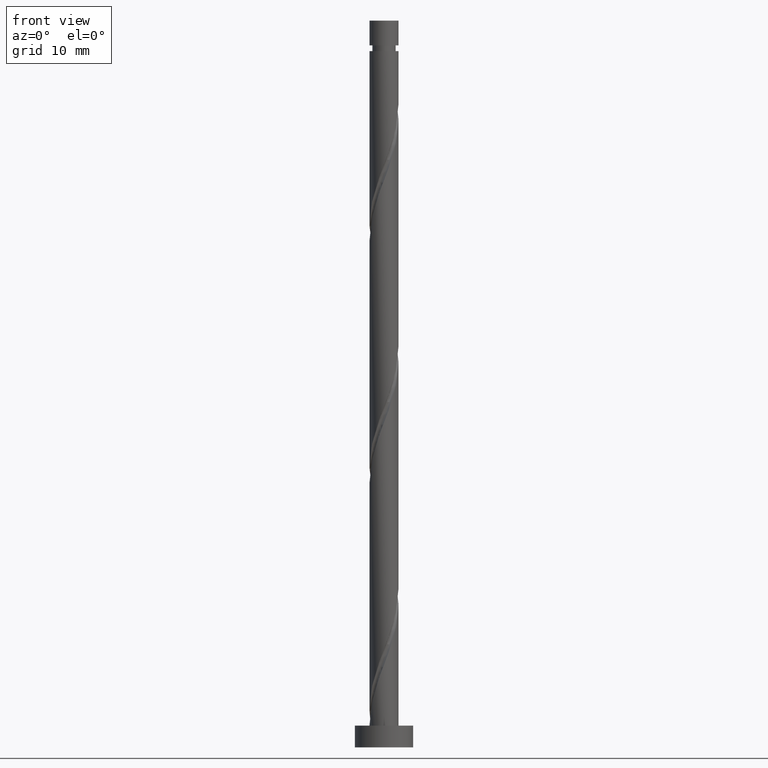
[diagram: clean part render]
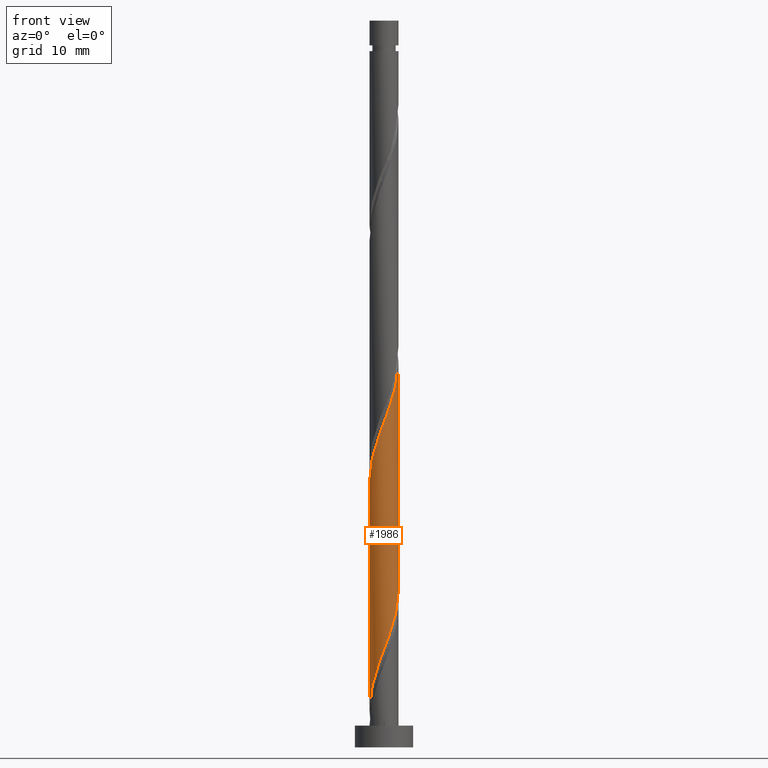
[diagram: same view with one face highlighted and labeled with its STEP entity id]
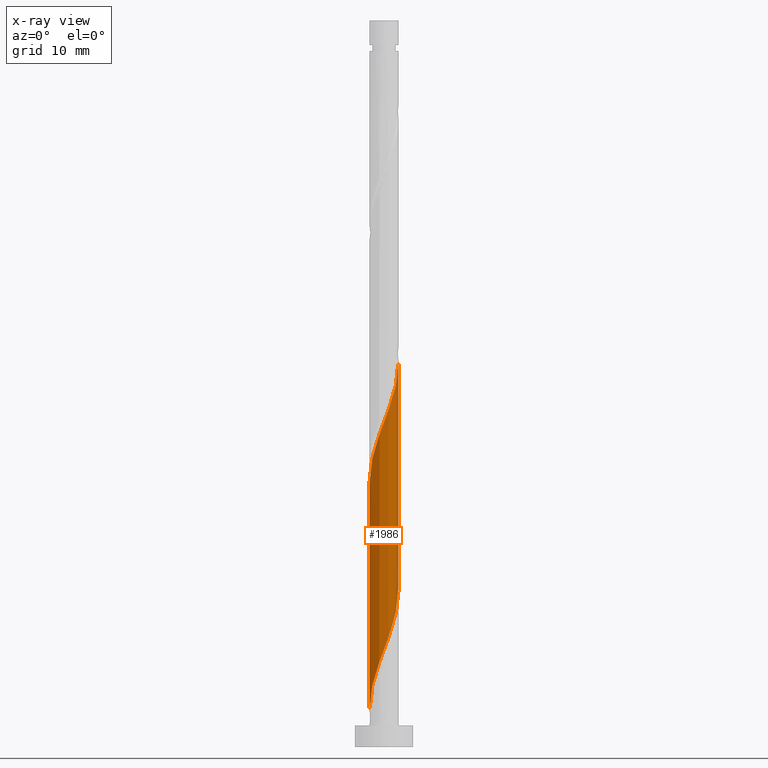
[diagram: x-ray of the same camera — body ghosted, the highlighted face saturated]
A machine part, front view. The second image highlights one B-rep face of the part: STEP entity #1986.
The next image is the same camera in x-ray: the body ghosted, the highlighted face saturated — about 0% of this face is hidden behind the body in this view.
In plain terms, the highlighted cylindrical surface (edge-blend (fillet) strip) has radius 2 mm, axis along (-0, -0, -1).
Its self-contained STEP definition (entity closure, byte-faithful):
#27 = LINE ( 'NONE', #2079, #1521 ) ;
#78 = EDGE_CURVE ( 'NONE', #1075, #123, #2169, .T. ) ;
#123 = VERTEX_POINT ( 'NONE', #793 ) ;
#126 = CARTESIAN_POINT ( 'NONE',  ( 1.959999999999999520, -0.3979949748426482303, 20.79224661886332370 ) ) ;
#133 = CARTESIAN_POINT ( 'NONE',  ( -0.1228517034671601366, -1.996223298870952290, 44.40335772997443087 ) ) ;
#143 = CARTESIAN_POINT ( 'NONE',  ( 1.521943481029063960, -1.324015695162691575, 49.26446884108555224 ) ) ;
#147 = CARTESIAN_POINT ( 'NONE',  ( 1.790205940182197031, -0.8917189533347235075, 19.40335772997442021 ) ) ;
#155 = CARTESIAN_POINT ( 'NONE',  ( -1.996223298870949403, -0.1228517034671588737, 5.514468841085541584 ) ) ;
#161 = CARTESIAN_POINT ( 'NONE',  ( 2.000000000000000000, -2.138391175437711907E-15, 21.85581327407338037 ) ) ;
#198 = ORIENTED_EDGE ( 'NONE', *, *, #1391, .F. ) ;
#268 = ORIENTED_EDGE ( 'NONE', *, *, #726, .F. ) ;
#270 = ORIENTED_EDGE ( 'NONE', *, *, #78, .F. ) ;
#290 = CARTESIAN_POINT ( 'NONE',  ( 1.907602967534731464, -0.6560338701139454276, 20.09780217441886307 ) ) ;
#296 = CARTESIAN_POINT ( 'NONE',  ( -1.324015695162691575, -1.521943481029063960, 40.93113550775222365 ) ) ;
#313 = CARTESIAN_POINT ( 'NONE',  ( 1.104504345536226451, -1.667354236715039795, 16.62557995219665230 ) ) ;
#319 = CARTESIAN_POINT ( 'NONE',  ( 2.000000000000002665, -5.532900244139497697E-16, 53.06201329698659919 ) ) ;
#325 = CARTESIAN_POINT ( 'NONE',  ( 0.8917189533347228414, -1.790205940182201250, 47.18113550775220943 ) ) ;
#386 = DIRECTION ( 'NONE',  ( -1.000000000000000000, 0.000000000000000000, 0.000000000000000000 ) ) ;
#394 = EDGE_CURVE ( 'NONE', #1075, #1272, #27, .T. ) ;
#445 = CARTESIAN_POINT ( 'NONE',  ( -1.980049565276632118, -0.3856594865056695021, 6.208913285529986226 ) ) ;
#454 = CARTESIAN_POINT ( 'NONE',  ( 1.127404036555502032, -1.672808912829666816, 47.87557995219666651 ) ) ;
#465 = CARTESIAN_POINT ( 'NONE',  ( -1.960000000000003073, -0.3979949748426481748, 37.45891328552999511 ) ) ;
#472 = CARTESIAN_POINT ( 'NONE',  ( 0.8849929959097655452, -1.812764992401015629, 15.93113550775220055 ) ) ;
#482 = CARTESIAN_POINT ( 'NONE',  ( -1.127404036555501143, -1.672808912829663042, 10.37557995219664875 ) ) ;
#509 =( BOUNDED_CURVE ( )  B_SPLINE_CURVE ( 2, ( #650, #1661, #126, #290, #147, #786, #1970, #1161, #313, #472, #622, #799, #969, #993, #1302, #822, #1501, #482, #1981, #1333, #2165, #2146, #1853, #445, #155, #1141, #1817 ),
 .UNSPECIFIED., .F., .T. ) 
 B_SPLINE_CURVE_WITH_KNOTS ( ( 3, 2, 2, 2, 2, 2, 2, 2, 2, 2, 2, 2, 2, 3 ),
 ( 0.8045317669814463502, 0.8125000000000000000, 0.8229166666666666297, 0.8333333333333333703, 0.8437500000000000000, 0.8541666666666666297, 0.8645833333333333703, 0.8750000000000000000, 0.8854166666666666297, 0.8958333333333333703, 0.9062500000000000000, 0.9166666666666666297, 0.9270833333333333703, 0.9295317669814463502 ),
 .UNSPECIFIED. ) 
 CURVE ( )  GEOMETRIC_REPRESENTATION_ITEM ( )  RATIONAL_B_SPLINE_CURVE ( ( 0.9062941362546277357, 0.9031415850403321510, 0.9090909090909075063, 0.9013135103398259851, 0.9090909090909075063, 0.9013135103398259851, 0.9090909090909075063, 0.9013135103398259851, 0.9090909090909075063, 0.9013135103398259851, 0.9090909090909075063, 0.9013135103398259851, 0.9090909090909075063, 0.9013135103398259851, 0.9090909090909075063, 0.9013135103398259851, 0.9090909090909075063, 0.9013135103398259851, 0.9090909090909075063, 0.9013135103398259851, 0.9090909090909075063, 0.9013135103398259851, 0.9090909090909075063, 0.9013135103398259851, 0.9090909090909075063, 0.9072628343904012294, 0.9062941362546277357 ) ) 
 REPRESENTATION_ITEM ( '' )  );
#622 = CARTESIAN_POINT ( 'NONE',  ( 0.6353262412077173016, -1.896407278838823762, 15.23669106330775413 ) ) ;
#629 = CARTESIAN_POINT ( 'NONE',  ( -0.6353262412077205212, -1.896407278838826205, 43.01446884108555224 ) ) ;
#650 = CARTESIAN_POINT ( 'NONE',  ( 2.000000000000000000, -2.138391175437711907E-15, 21.85581327407338037 ) ) ;
#726 = EDGE_CURVE ( 'NONE', #123, #937, #1181, .T. ) ;
#727 = CARTESIAN_POINT ( 'NONE',  ( 0.000000000000000000, 0.000000000000000000, 100.0000000000000000 ) ) ;
#747 = CARTESIAN_POINT ( 'NONE',  ( -2.000000000000003109, 4.882410620842015415E-15, 36.39534663031990647 ) ) ;
#786 = CARTESIAN_POINT ( 'NONE',  ( 1.672808912829662598, -1.127404036555501810, 18.70891328552998445 ) ) ;
#793 = CARTESIAN_POINT ( 'NONE',  ( 2.000000000000002665, -5.532900244139497697E-16, 53.06201329698659208 ) ) ;
#799 = CARTESIAN_POINT ( 'NONE',  ( 0.3856594865056690580, -1.980049565276632118, 14.54224661886331482 ) ) ;
#806 = EDGE_LOOP ( 'NONE', ( #268, #270, #1459, #198 ) ) ;
#817 = CARTESIAN_POINT ( 'NONE',  ( -1.672808912829666372, -1.127404036555502476, 39.54224661886333081 ) ) ;
#822 = CARTESIAN_POINT ( 'NONE',  ( -0.6560338701139445394, -1.907602967534731908, 11.76446884108553270 ) ) ;
#857 = CARTESIAN_POINT ( 'NONE',  ( 2.000000000000000000, 2.449293598294705921E-16, 100.0000000000000000 ) ) ;
#893 = CYLINDRICAL_SURFACE ( 'NONE', #1493, 2.000000000000000000 ) ;
#937 = VERTEX_POINT ( 'NONE', #161 ) ;
#963 = CARTESIAN_POINT ( 'NONE',  ( 1.324673758792282996, -1.498412303996178752, 48.57002439664110227 ) ) ;
#969 = CARTESIAN_POINT ( 'NONE',  ( 0.1228517034671583186, -1.996223298870949403, 13.84780217441887373 ) ) ;
#986 = CARTESIAN_POINT ( 'NONE',  ( -2.000000000000003553, -0.2010075630518414480, 36.92877299950919934 ) ) ;
#987 = CARTESIAN_POINT ( 'NONE',  ( 0.1399560795713511441, -2.012397032465270907, 45.09780217441885952 ) ) ;
#993 = CARTESIAN_POINT ( 'NONE',  ( -0.1399560795713525874, -2.012397032465267355, 13.15335772997443087 ) ) ;
#994 = VECTOR ( 'NONE', #1738, 1000.000000000000000 ) ;
#1075 = VERTEX_POINT ( 'NONE', #747 ) ;
#1141 = CARTESIAN_POINT ( 'NONE',  ( -1.999999999999999556, -0.06148390331534597797, 5.352310295434864251 ) ) ;
#1148 = CARTESIAN_POINT ( 'NONE',  ( 2.000000000000002665, -0.06148390331534824699, 52.89884960895844301 ) ) ;
#1161 = CARTESIAN_POINT ( 'NONE',  ( 1.324015695162688022, -1.521943481029062406, 17.32002439664110227 ) ) ;
#1177 = CARTESIAN_POINT ( 'NONE',  ( 1.996223298870952290, -0.1228517034671611219, 52.73669106330778789 ) ) ;
#1181 = LINE ( 'NONE', #857, #994 ) ;
#1272 = VERTEX_POINT ( 'NONE', #1967 ) ;
#1302 = CARTESIAN_POINT ( 'NONE',  ( -0.3979949748426480638, -1.959999999999999520, 12.45891328552997557 ) ) ;
#1327 = CARTESIAN_POINT ( 'NONE',  ( -0.8849929959097687648, -1.812764992401018294, 42.32002439664110227 ) ) ;
#1333 = CARTESIAN_POINT ( 'NONE',  ( -1.521943481029062406, -1.324015695162688244, 8.986691063307768346 ) ) ;
#1391 = EDGE_CURVE ( 'NONE', #937, #1272, #509, .T. ) ;
#1403 = FACE_OUTER_BOUND ( 'NONE', #806, .T. ) ;
#1459 = ORIENTED_EDGE ( 'NONE', *, *, #394, .T. ) ;
#1473 = CARTESIAN_POINT ( 'NONE',  ( -0.3856594865056713894, -1.980049565276635226, 43.70891328552998800 ) ) ;
#1493 = AXIS2_PLACEMENT_3D ( 'NONE', #727, #1920, #386 ) ;
#1496 = CARTESIAN_POINT ( 'NONE',  ( -1.498412303996178307, -1.324673758792282996, 40.23669106330777367 ) ) ;
#1501 = CARTESIAN_POINT ( 'NONE',  ( -0.8917189533347227304, -1.790205940182197475, 11.07002439664109339 ) ) ;
#1521 = VECTOR ( 'NONE', #2054, 1000.000000000000000 ) ;
#1661 = CARTESIAN_POINT ( 'NONE',  ( 1.999999999999999556, -0.2010075630518437240, 21.32238690488411592 ) ) ;
#1678 = CARTESIAN_POINT ( 'NONE',  ( -1.790205940182200361, -0.8917189533347232855, 38.84780217441886663 ) ) ;
#1679 = CARTESIAN_POINT ( 'NONE',  ( 1.980049565276634560, -0.3856594865056723886, 52.04224661886331660 ) ) ;
#1687 = CARTESIAN_POINT ( 'NONE',  ( -2.000000000000003109, 4.882410620842015415E-15, 36.39534663031990647 ) ) ;
#1688 = CARTESIAN_POINT ( 'NONE',  ( 1.667354236715040017, -1.104504345536230225, 49.95891328552998800 ) ) ;
#1738 = DIRECTION ( 'NONE',  ( -0.000000000000000000, -0.000000000000000000, -1.000000000000000000 ) ) ;
#1817 = CARTESIAN_POINT ( 'NONE',  ( -2.000000000000000000, 1.644916288798239822E-15, 5.189146607406710743 ) ) ;
#1825 = CARTESIAN_POINT ( 'NONE',  ( -1.104504345536229559, -1.667354236715040905, 41.62557995219665941 ) ) ;
#1848 = CARTESIAN_POINT ( 'NONE',  ( 1.812764992401018072, -0.8849929959097688759, 50.65335772997443797 ) ) ;
#1853 = CARTESIAN_POINT ( 'NONE',  ( -1.896407278838823762, -0.6353262412077178567, 6.903357729974424650 ) ) ;
#1920 = DIRECTION ( 'NONE',  ( -0.000000000000000000, -0.000000000000000000, -1.000000000000000000 ) ) ;
#1967 = CARTESIAN_POINT ( 'NONE',  ( -2.000000000000000000, 1.644916288798239822E-15, 5.189146607406710743 ) ) ;
#1970 = CARTESIAN_POINT ( 'NONE',  ( 1.498412303996175421, -1.324673758792282108, 18.01446884108553803 ) ) ;
#1981 = CARTESIAN_POINT ( 'NONE',  ( -1.324673758792282108, -1.498412303996175421, 9.681135507752207658 ) ) ;
#1986 = ADVANCED_FACE ( 'NONE', ( #1403 ), #893, .T. ) ;
#1988 = CARTESIAN_POINT ( 'NONE',  ( 0.3979949748426478973, -1.960000000000003073, 45.79224661886333081 ) ) ;
#2054 = DIRECTION ( 'NONE',  ( -0.000000000000000000, -0.000000000000000000, -1.000000000000000000 ) ) ;
#2079 = CARTESIAN_POINT ( 'NONE',  ( -2.000000000000000000, 0.000000000000000000, 100.0000000000000000 ) ) ;
#2139 = CARTESIAN_POINT ( 'NONE',  ( 1.896407278838826205, -0.6353262412077205212, 51.34780217441887373 ) ) ;
#2146 = CARTESIAN_POINT ( 'NONE',  ( -1.812764992401015629, -0.8849929959097655452, 7.597802174418868404 ) ) ;
#2161 = CARTESIAN_POINT ( 'NONE',  ( 0.6560338701139438733, -1.907602967534736571, 46.48669106330776657 ) ) ;
#2165 = CARTESIAN_POINT ( 'NONE',  ( -1.667354236715039129, -1.104504345536226895, 8.292246618863309493 ) ) ;
#2168 = CARTESIAN_POINT ( 'NONE',  ( -1.907602967534736571, -0.6560338701139440953, 38.15335772997443087 ) ) ;
#2169 =( BOUNDED_CURVE ( )  B_SPLINE_CURVE ( 2, ( #1687, #986, #465, #2168, #1678, #817, #1496, #296, #1825, #1327, #629, #1473, #133, #987, #1988, #2161, #325, #454, #963, #143, #1688, #1848, #2139, #1679, #1177, #1148, #319 ),
 .UNSPECIFIED., .F., .T. ) 
 B_SPLINE_CURVE_WITH_KNOTS ( ( 3, 2, 2, 2, 2, 2, 2, 2, 2, 2, 2, 2, 2, 3 ),
 ( 0.3045317669814462946, 0.3125000000000000000, 0.3229166666666666297, 0.3333333333333333703, 0.3437500000000000000, 0.3541666666666666297, 0.3645833333333333703, 0.3750000000000000000, 0.3854166666666666297, 0.3958333333333333703, 0.4062500000000000000, 0.4166666666666666297, 0.4270833333333333703, 0.4295317669814463502 ),
 .UNSPECIFIED. ) 
 CURVE ( )  GEOMETRIC_REPRESENTATION_ITEM ( )  RATIONAL_B_SPLINE_CURVE ( ( 0.9062941362546337309, 0.9031415850403379242, 0.9090909090909135015, 0.9013135103398318693, 0.9090909090909135015, 0.9013135103398318693, 0.9090909090909135015, 0.9013135103398318693, 0.9090909090909135015, 0.9013135103398318693, 0.9090909090909135015, 0.9013135103398318693, 0.9090909090909135015, 0.9013135103398318693, 0.9090909090909135015, 0.9013135103398318693, 0.9090909090909135015, 0.9013135103398318693, 0.9090909090909135015, 0.9013135103398318693, 0.9090909090909135015, 0.9013135103398318693, 0.9090909090909135015, 0.9013135103398318693, 0.9090909090909135015, 0.9072628343904072246, 0.9062941362546337309 ) ) 
 REPRESENTATION_ITEM ( '' )  );